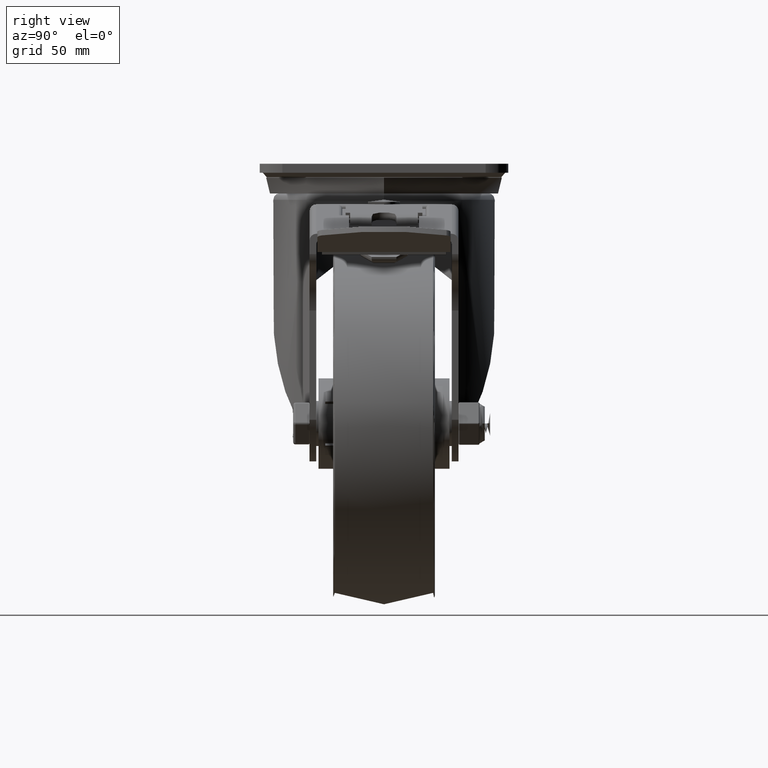
[diagram: clean part render]
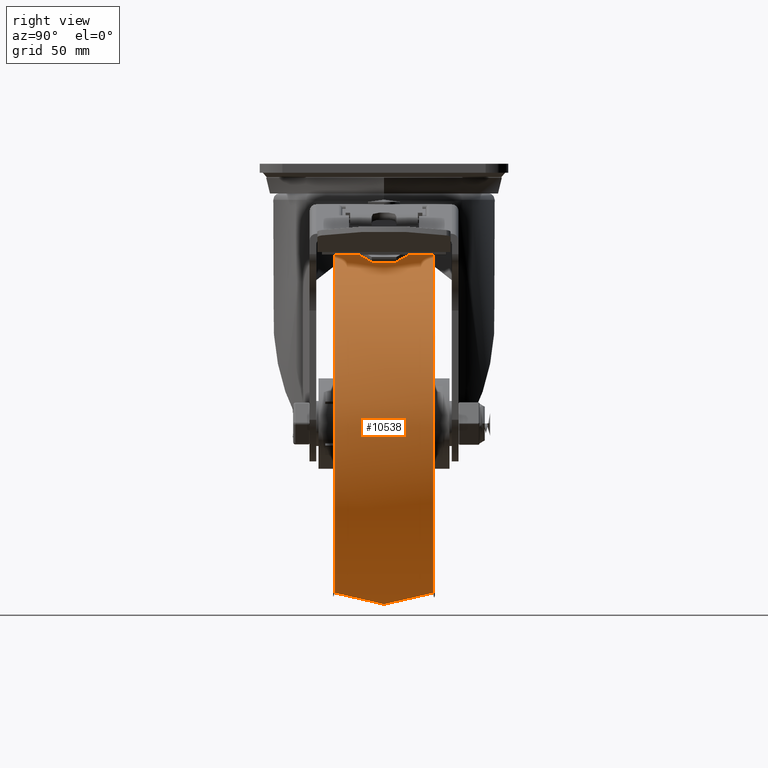
[diagram: same view with one face highlighted and labeled with its STEP entity id]
A machine part, right view. The second image highlights one B-rep face of the part: STEP entity #10538.
In plain terms, the highlighted face is a freeform B-spline surface patch.
Its self-contained STEP definition (entity closure, byte-faithful):
#20=(
BOUNDED_SURFACE()
B_SPLINE_SURFACE(2,2,((#20552,#20553,#20554,#20555,#20556,#20557,#20558,
#20559,#20560),(#20561,#20562,#20563,#20564,#20565,#20566,#20567,#20568,
#20569),(#20570,#20571,#20572,#20573,#20574,#20575,#20576,#20577,#20578)),
 .UNSPECIFIED.,.F.,.T.,.F.)
B_SPLINE_SURFACE_WITH_KNOTS((3,3),(3,2,2,2,3),(-0.256104146412577,0.256104146412578),
(-3.14159265358979,-1.5707963267949,0.,1.5707963267949,3.14159265358979),
 .UNSPECIFIED.)
GEOMETRIC_REPRESENTATION_ITEM()
RATIONAL_B_SPLINE_SURFACE(((1.,0.707106781186548,1.,0.707106781186548,1.,
0.707106781186548,1.,0.707106781186548,1.),(0.967384190024017,0.684043920778638,
0.967384190024017,0.684043920778638,0.967384190024017,0.684043920778638,
0.967384190024017,0.684043920778638,0.967384190024017),(1.,0.707106781186548,
1.,0.707106781186548,1.,0.707106781186548,1.,0.707106781186548,1.)))
REPRESENTATION_ITEM('')
SURFACE()
);
#1410=FACE_OUTER_BOUND('',#2055,.T.);
#2055=EDGE_LOOP('',(#8498,#8499,#8500,#8501));
#4250=CIRCLE('',#11626,77.1991173183125);
#4251=CIRCLE('',#11627,85.8749999999998);
#4252=CIRCLE('',#11628,77.1991173183125);
#4979=VERTEX_POINT('',#20549);
#4980=VERTEX_POINT('',#20579);
#6222=EDGE_CURVE('',#4979,#4979,#4250,.T.);
#6223=EDGE_CURVE('',#4979,#4980,#4251,.T.);
#6224=EDGE_CURVE('',#4980,#4980,#4252,.T.);
#8498=ORIENTED_EDGE('',*,*,#6222,.F.);
#8499=ORIENTED_EDGE('',*,*,#6223,.T.);
#8500=ORIENTED_EDGE('',*,*,#6224,.T.);
#8501=ORIENTED_EDGE('',*,*,#6223,.F.);
#10538=ADVANCED_FACE('',(#1410),#20,.F.);
#11626=AXIS2_PLACEMENT_3D('',#20551,#13743,#13744);
#11627=AXIS2_PLACEMENT_3D('',#20580,#13745,#13746);
#11628=AXIS2_PLACEMENT_3D('',#20581,#13747,#13748);
#13743=DIRECTION('center_axis',(-3.38288897427651E-15,1.,0.));
#13744=DIRECTION('ref_axis',(-1.,-3.38288897427651E-15,0.));
#13745=DIRECTION('center_axis',(1.,3.38288897427651E-15,-1.22464679914735E-16));
#13746=DIRECTION('ref_axis',(1.22464679914735E-16,4.19082355898663E-31,
1.));
#13747=DIRECTION('center_axis',(-3.38288897427651E-15,1.,0.));
#13748=DIRECTION('ref_axis',(-1.,-3.38288897427651E-15,0.));
#20549=CARTESIAN_POINT('',(-6.64696591830694E-14,21.7533136966129,77.1991173183125));
#20551=CARTESIAN_POINT('Origin',(-7.358904505825E-14,21.7533136966129,0.));
#20552=CARTESIAN_POINT('Ctrl Pts',(7.35890450582499E-14,-21.7533136966129,
77.1991173183125));
#20553=CARTESIAN_POINT('Ctrl Pts',(77.1991173183125,-21.7533136966126,77.1991173183125));
#20554=CARTESIAN_POINT('Ctrl Pts',(77.1991173183125,-21.7533136966126,1.57772181044202E-29));
#20555=CARTESIAN_POINT('Ctrl Pts',(77.1991173183125,-21.7533136966126,-77.1991173183125));
#20556=CARTESIAN_POINT('Ctrl Pts',(7.358904505825E-14,-21.7533136966129,
-77.1991173183125));
#20557=CARTESIAN_POINT('Ctrl Pts',(-77.1991173183124,-21.7533136966132,
-77.1991173183125));
#20558=CARTESIAN_POINT('Ctrl Pts',(-77.1991173183124,-21.7533136966132,
-1.57772181044202E-29));
#20559=CARTESIAN_POINT('Ctrl Pts',(-77.1991173183124,-21.7533136966132,
77.1991173183125));
#20560=CARTESIAN_POINT('Ctrl Pts',(7.35890450582499E-14,-21.7533136966129,
77.1991173183125));
#20561=CARTESIAN_POINT('Ctrl Pts',(-4.10620158252371E-29,1.11022302462516E-14,
82.8953157500102));
#20562=CARTESIAN_POINT('Ctrl Pts',(82.8953157500102,2.91527879916131E-13,
82.8953157500102));
#20563=CARTESIAN_POINT('Ctrl Pts',(82.8953157500102,2.91527879916131E-13,
4.75378980819833E-30));
#20564=CARTESIAN_POINT('Ctrl Pts',(82.8953157500102,2.91527879916131E-13,
-82.8953157500102));
#20565=CARTESIAN_POINT('Ctrl Pts',(-3.15544362088405E-29,1.11022302462516E-14,
-82.8953157500102));
#20566=CARTESIAN_POINT('Ctrl Pts',(-82.8953157500102,-2.69323419423628E-13,
-82.8953157500102));
#20567=CARTESIAN_POINT('Ctrl Pts',(-82.8953157500102,-2.69323419423628E-13,
-4.75378980819833E-30));
#20568=CARTESIAN_POINT('Ctrl Pts',(-82.8953157500102,-2.69323419423628E-13,
82.8953157500102));
#20569=CARTESIAN_POINT('Ctrl Pts',(-4.10620158252371E-29,1.11022302462516E-14,
82.8953157500102));
#20570=CARTESIAN_POINT('Ctrl Pts',(-7.358904505825E-14,21.7533136966129,
77.1991173183125));
#20571=CARTESIAN_POINT('Ctrl Pts',(77.1991173183124,21.7533136966132,77.1991173183124));
#20572=CARTESIAN_POINT('Ctrl Pts',(77.1991173183124,21.7533136966132,0.));
#20573=CARTESIAN_POINT('Ctrl Pts',(77.1991173183124,21.7533136966132,-77.1991173183124));
#20574=CARTESIAN_POINT('Ctrl Pts',(-7.358904505825E-14,21.7533136966129,
-77.1991173183125));
#20575=CARTESIAN_POINT('Ctrl Pts',(-77.1991173183125,21.7533136966126,-77.1991173183124));
#20576=CARTESIAN_POINT('Ctrl Pts',(-77.1991173183125,21.7533136966126,0.));
#20577=CARTESIAN_POINT('Ctrl Pts',(-77.1991173183125,21.7533136966126,77.1991173183124));
#20578=CARTESIAN_POINT('Ctrl Pts',(-7.358904505825E-14,21.7533136966129,
77.1991173183125));
#20579=CARTESIAN_POINT('',(8.30432102503372E-14,-21.7533136966129,77.1991173183125));
#20580=CARTESIAN_POINT('Origin',(-7.1947999449901E-16,-1.15050723091946E-14,
-5.87499999999984));
#20581=CARTESIAN_POINT('Origin',(7.35890450582501E-14,-21.7533136966129,
0.));